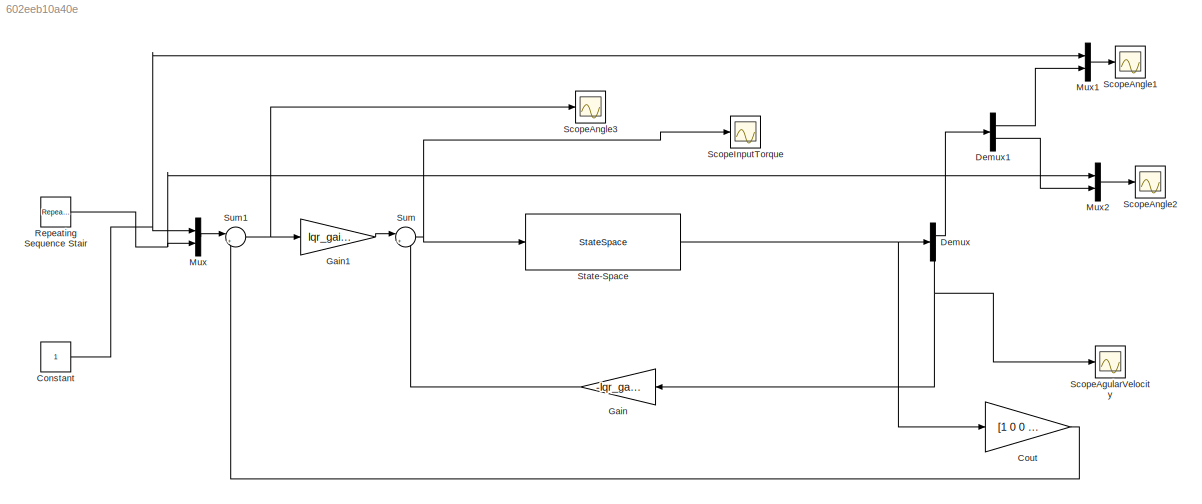
MODEL slx_602eeb10a40e
KIND model
BLOCK [Constant] Constant
BLOCK [Gain] Cout
  Gain = [1 0 0 0; 0 1 0 0]
  Multiplication = Matrix(K*u) (u vector)
  OutDataTypeStr = Inherit: Inherit via internal rule
  ParamDataTypeStr = Inherit: Inherit via internal rule
  SaturateOnIntegerOverflow = off
BLOCK [Demux] Demux
  DisplayOption = bar
  Outputs = 2
  Ports = [1, 2]
BLOCK [Demux] Demux1
  DisplayOption = bar
  Outputs = 2
  Ports = [1, 2]
BLOCK [Gain] Gain
  Gain = -lqr_gain2
  Multiplication = Matrix(K*u) (u vector)
  OutDataTypeStr = Inherit: Inherit via internal rule
  ParamDataTypeStr = Inherit: Inherit via internal rule
  SaturateOnIntegerOverflow = off
BLOCK [Gain] Gain1
  Gain = lqr_gain1
  Multiplication = Matrix(K*u) (u vector)
  OutDataTypeStr = Inherit: Inherit via internal rule
  ParamDataTypeStr = Inherit: Inherit via internal rule
  SaturateOnIntegerOverflow = off
BLOCK [Mux] Mux
  DisplayOption = bar
  Inputs = 2
  Ports = [2, 1]
BLOCK [Mux] Mux1
  DisplayOption = bar
  Inputs = 2
  Ports = [2, 1]
BLOCK [Mux] Mux2
  DisplayOption = bar
  Inputs = 2
  Ports = [2, 1]
BLOCK [Reference] Repeating Sequence Stair  REF=simulink/Sources/Repeating
Sequence
Stair
  ConRadixGroup = Best Precision: Vector-wise
  LockScale = off
  OutDataType = fixdt(0,8)
  OutDataTypeStr = double
  OutMax = []
  OutMin = []
  OutScaling = 2^-12
  OutValues = [1 4 6 2 0].'
  OutputDataTypeScalingMode = double
  Ports = [0, 1]
  SourceBlock = simulink/Sources/Repeating\nSequence\nStair
  SourceType = Repeating Sequence Stair
  tsamp = 5
BLOCK [Scope] ScopeAgularVelocity
  DataFormat = StructureWithTime
  Floating = off
  LimitDataPoints = off
  NumInputPorts = 1
  Ports = [1]
  SaveName = jointVelocity
  SaveToWorkspace = on
  ShowLegends = off
  TimeRange = 10
  YMax = 30
  YMin = -40
BLOCK [Scope] ScopeAngle1
  DataFormat = StructureWithTime
  Floating = off
  LimitDataPoints = off
  NumInputPorts = 1
  Ports = [1]
  SaveName = jointAngle
  SaveToWorkspace = on
  ShowLegends = off
  TimeRange = 10
  YMax = 0.03
  YMin = -0.005
  ZoomMode = xonly
BLOCK [Scope] ScopeAngle2
  DataFormat = StructureWithTime
  Floating = off
  LimitDataPoints = off
  NumInputPorts = 1
  Ports = [1]
  SaveName = jointAngle1
  SaveToWorkspace = on
  ShowLegends = off
  TimeRange = 10
  YMax = 0.03
  YMin = -0.005
  ZoomMode = xonly
BLOCK [Scope] ScopeAngle3
  DataFormat = StructureWithTime
  Floating = off
  LimitDataPoints = off
  NumInputPorts = 1
  Ports = [1]
  SaveName = jointAngle2
  SaveToWorkspace = on
  ShowLegends = off
  TimeRange = 10
  YMax = 0.03
  YMin = -0.005
  ZoomMode = xonly
BLOCK [Scope] ScopeInputTorque
  DataFormat = StructureWithTime
  Floating = off
  LimitDataPoints = off
  NumInputPorts = 1
  Ports = [1]
  SaveName = torque
  SaveToWorkspace = on
  ShowLegends = off
  YMax = 1
  YMin = -1
BLOCK [StateSpace] State-Space
  A = linearized_state_space_model.A
  B = linearized_state_space_model.B
  C = eye(4)
  D = zeros(4,2)
  Ports = [1, 1]
  X0 = [0.2 0.1 0 0]
BLOCK [Sum] Sum
  IconShape = round
  InputSameDT = off
  Inputs = |++
  OutDataTypeStr = Inherit: Inherit via internal rule
  Ports = [2, 1]
  SaturateOnIntegerOverflow = off
BLOCK [Sum] Sum1
  IconShape = round
  InputSameDT = off
  Inputs = |+-
  OutDataTypeStr = Inherit: Inherit via internal rule
  Ports = [2, 1]
  SaturateOnIntegerOverflow = off
NET Constant:1 -> Mux1:1, Mux:1
LINE Cout:1 -> Sum1:2
LINE Demux1:1 -> Mux1:2
LINE Demux1:2 -> Mux2:2
LINE Demux:1 -> Demux1:1
NET Demux:2 -> Gain:1, ScopeAgularVelocity:1
LINE Gain1:1 -> Sum:1
LINE Gain:1 -> Sum:2
LINE Mux1:1 -> ScopeAngle1:1
LINE Mux2:1 -> ScopeAngle2:1
LINE Mux:1 -> Sum1:1
NET Repeating Sequence Stair:1 -> Mux2:1, Mux:2
NET State-Space:1 -> Cout:1, Demux:1
NET Sum1:1 -> Gain1:1, ScopeAngle3:1
NET Sum:1 -> ScopeInputTorque:1, State-Space:1
note: NET lines group one-source signal fan-out (src -> all destinations, sorted); 1:1 wires keep LINE
